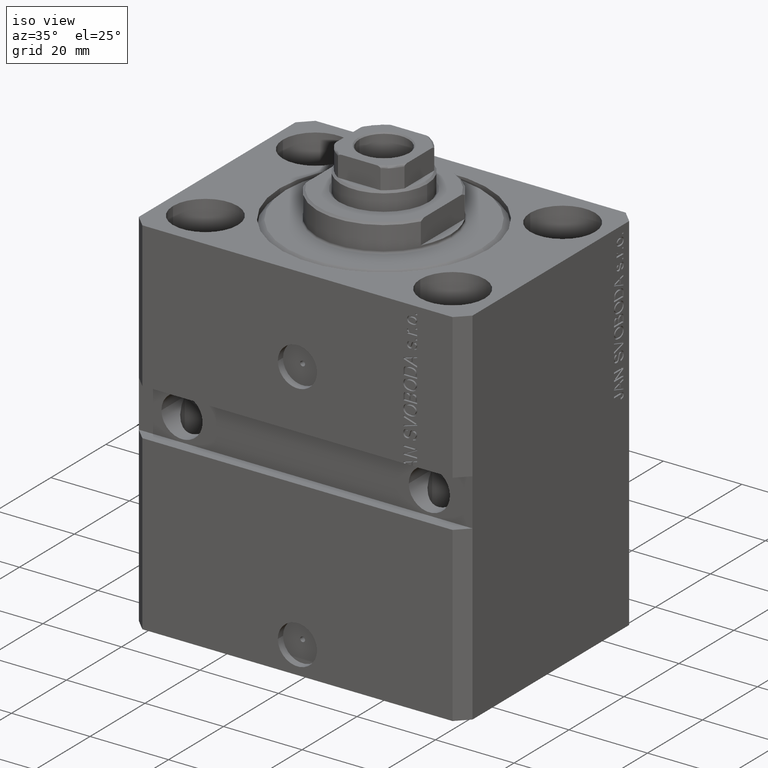
[diagram: clean part render]
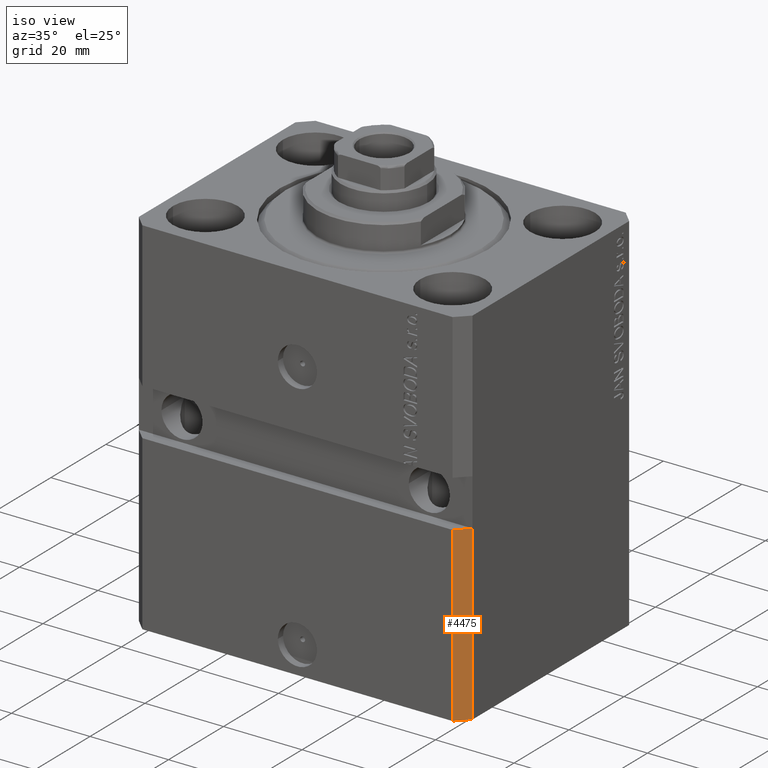
[diagram: same view with one face highlighted and labeled with its STEP entity id]
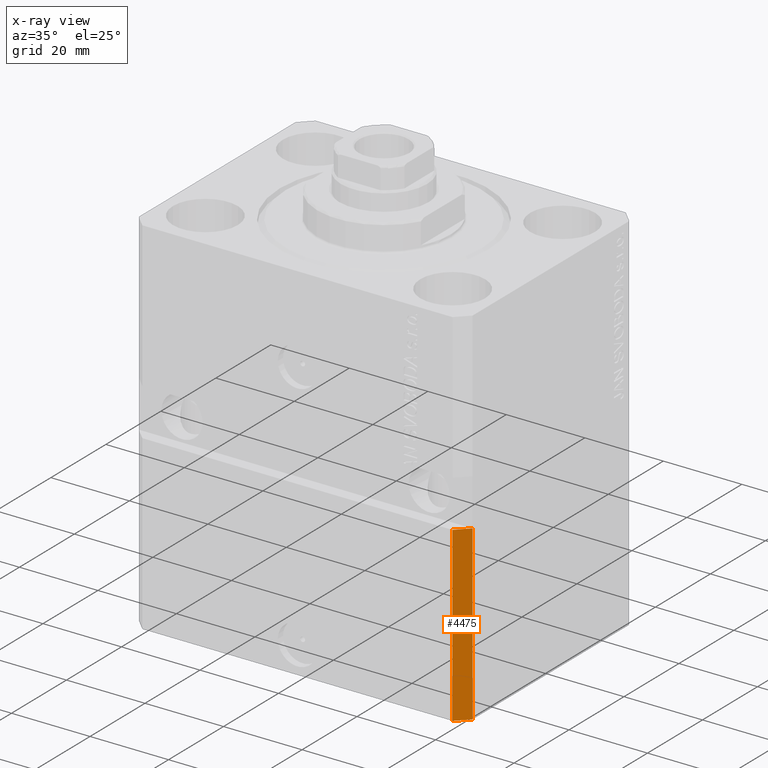
[diagram: x-ray of the same camera — body ghosted, the highlighted face saturated]
A machine part, iso view. The second image highlights one B-rep face of the part: STEP entity #4475.
The next image is the same camera in x-ray: the body ghosted, the highlighted face saturated — about 0% of this face is hidden behind the body in this view.
In plain terms, the highlighted planar face has unit normal (0.7071, -0.7071, 0).
Its self-contained STEP definition (entity closure, byte-faithful):
#805 = LINE ( 'NONE', #1030, #26083 ) ;
#1030 = CARTESIAN_POINT ( 'NONE',  ( 39.50000000000000711, -31.50000000000000000, -93.00000000000000000 ) ) ;
#1973 = CARTESIAN_POINT ( 'NONE',  ( 39.50000000000001421, -31.49999999999999289, -48.99999999999999289 ) ) ;
#2716 = PLANE ( 'NONE',  #39721 ) ;
#4475 = ADVANCED_FACE ( 'NONE', ( #33787 ), #2716, .T. ) ;
#6135 = ORIENTED_EDGE ( 'NONE', *, *, #11112, .T. ) ;
#6438 = VERTEX_POINT ( 'NONE', #1973 ) ;
#6483 = VECTOR ( 'NONE', #22633, 1000.000000000000000 ) ;
#8132 = LINE ( 'NONE', #32612, #6483 ) ;
#9690 = EDGE_CURVE ( 'NONE', #6438, #13506, #21561, .T. ) ;
#10219 = EDGE_CURVE ( 'NONE', #20542, #6438, #13749, .T. ) ;
#11112 = EDGE_CURVE ( 'NONE', #37781, #13506, #8132, .T. ) ;
#12103 = DIRECTION ( 'NONE',  ( 0.7071067811865483499, 0.7071067811865466846, 0.000000000000000000 ) ) ;
#12363 = CARTESIAN_POINT ( 'NONE',  ( 42.50000000000000711, -28.50000000000000355, -93.00000000000000000 ) ) ;
#12853 = EDGE_CURVE ( 'NONE', #20542, #37781, #805, .T. ) ;
#12921 = DIRECTION ( 'NONE',  ( 0.7071067811865483499, 0.7071067811865466846, 0.000000000000000000 ) ) ;
#13506 = VERTEX_POINT ( 'NONE', #44393 ) ;
#13749 = LINE ( 'NONE', #24201, #35444 ) ;
#14763 = CARTESIAN_POINT ( 'NONE',  ( 39.50000000000000711, -31.50000000000000000, -48.99999999999999289 ) ) ;
#14979 = DIRECTION ( 'NONE',  ( 0.7071067811865483499, 0.7071067811865466846, 0.000000000000000000 ) ) ;
#16327 = DIRECTION ( 'NONE',  ( 0.7071067811865466846, -0.7071067811865483499, 0.000000000000000000 ) ) ;
#20542 = VERTEX_POINT ( 'NONE', #41908 ) ;
#21460 = DIRECTION ( 'NONE',  ( 0.000000000000000000, 0.000000000000000000, 1.000000000000000000 ) ) ;
#21561 = LINE ( 'NONE', #14763, #39022 ) ;
#22633 = DIRECTION ( 'NONE',  ( 0.000000000000000000, 0.000000000000000000, 1.000000000000000000 ) ) ;
#24201 = CARTESIAN_POINT ( 'NONE',  ( 39.50000000000000711, -31.50000000000000000, -93.00000000000000000 ) ) ;
#26083 = VECTOR ( 'NONE', #12103, 1000.000000000000000 ) ;
#26668 = ORIENTED_EDGE ( 'NONE', *, *, #12853, .T. ) ;
#32324 = EDGE_LOOP ( 'NONE', ( #42134, #33630, #26668, #6135 ) ) ;
#32612 = CARTESIAN_POINT ( 'NONE',  ( 42.50000000000000711, -28.50000000000000355, -93.00000000000000000 ) ) ;
#33630 = ORIENTED_EDGE ( 'NONE', *, *, #10219, .F. ) ;
#33787 = FACE_OUTER_BOUND ( 'NONE', #32324, .T. ) ;
#35444 = VECTOR ( 'NONE', #21460, 1000.000000000000000 ) ;
#36968 = CARTESIAN_POINT ( 'NONE',  ( 39.50000000000000711, -31.50000000000000000, -93.00000000000000000 ) ) ;
#37781 = VERTEX_POINT ( 'NONE', #12363 ) ;
#39022 = VECTOR ( 'NONE', #14979, 1000.000000000000000 ) ;
#39721 = AXIS2_PLACEMENT_3D ( 'NONE', #36968, #16327, #12921 ) ;
#41908 = CARTESIAN_POINT ( 'NONE',  ( 39.50000000000000711, -31.50000000000000000, -93.00000000000000000 ) ) ;
#42134 = ORIENTED_EDGE ( 'NONE', *, *, #9690, .F. ) ;
#44393 = CARTESIAN_POINT ( 'NONE',  ( 42.50000000000001421, -28.49999999999999289, -48.99999999999999289 ) ) ;